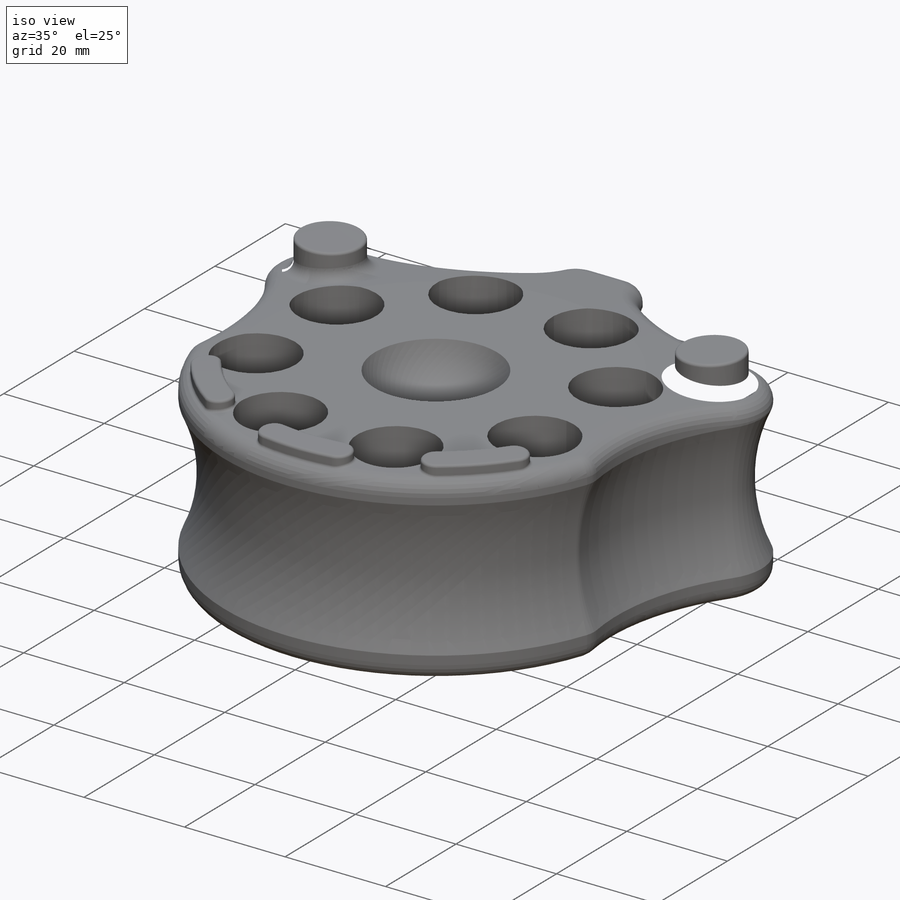
[diagram: iso view]
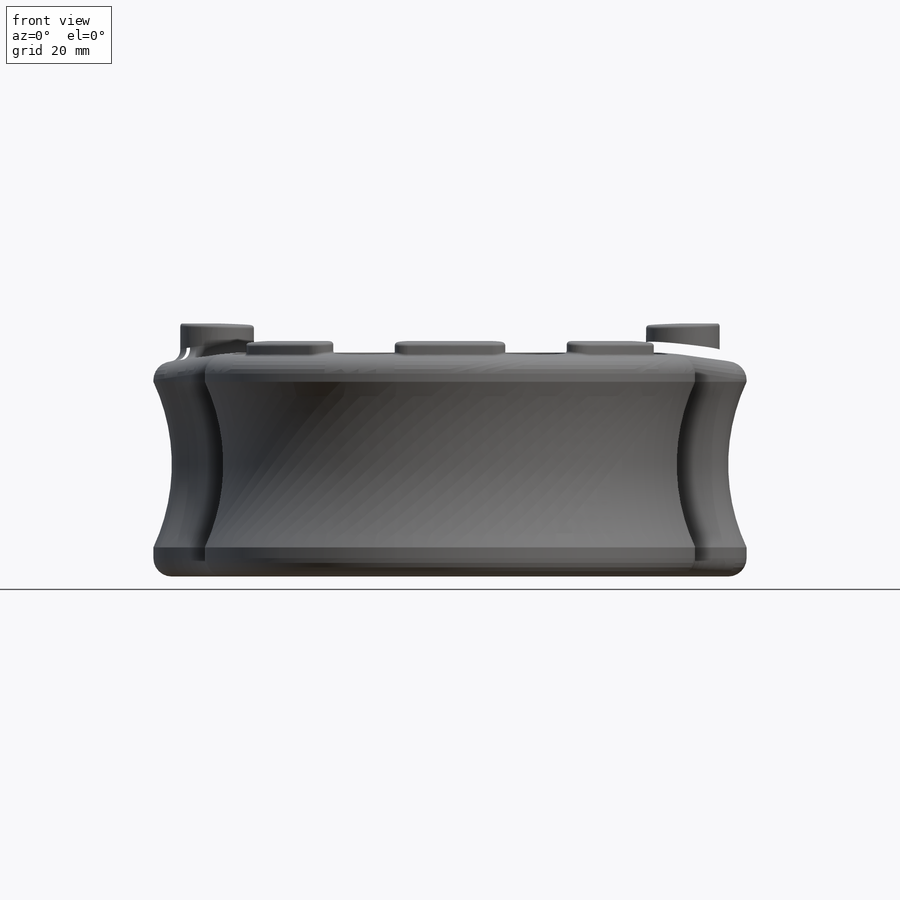
[diagram: front view]
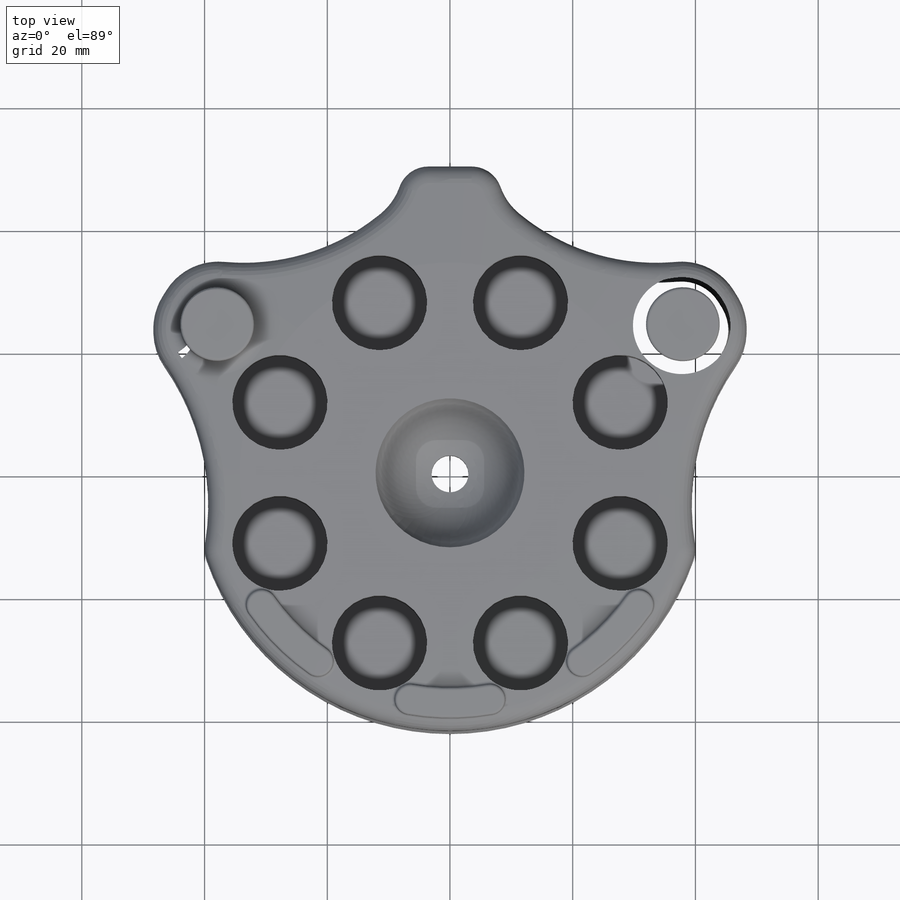
[diagram: top view]
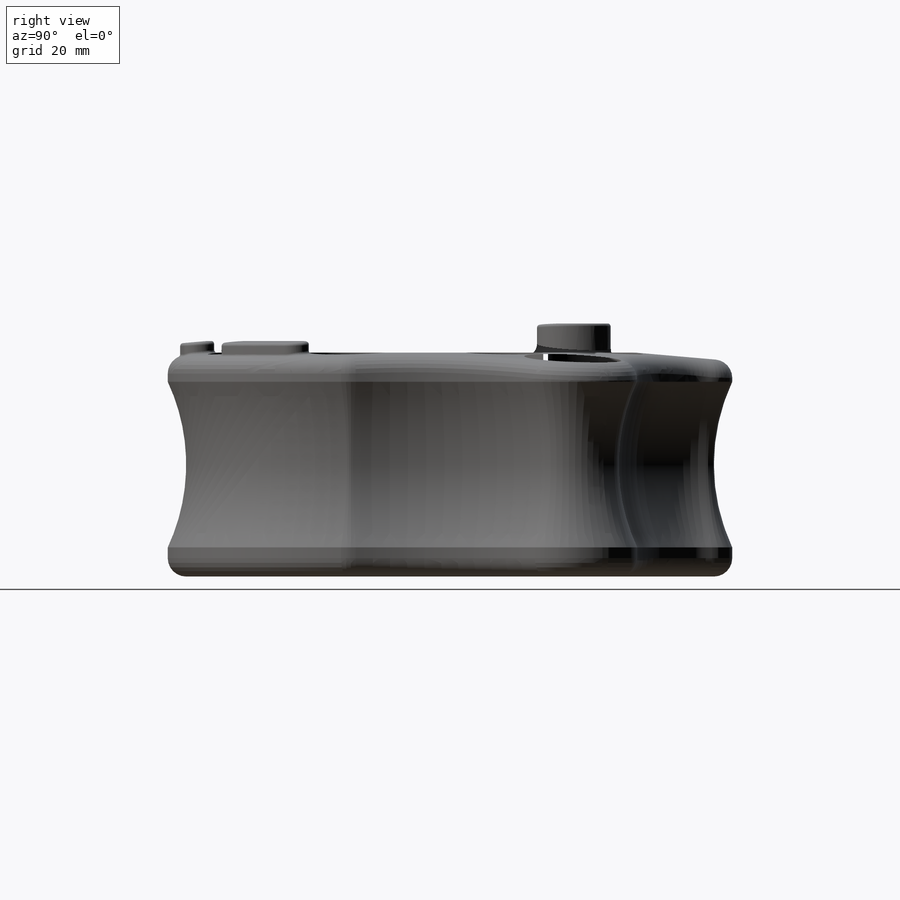
[diagram: right view]
SOLIDWORKS PART (.sldprt)
format: sldprt  version: not decoded by parser v0  size: 1,391,104 bytes
history: native  units: mm
features: sketch x16, extrude x6, plane x5, cut_extrude x5, fillet x5, cut_revolve x3, mirror x2, delete_body x2, material x1, pattern_circular x1 (+9 scaffold rows collapsed)
feature tree (55):
  scaffold x9  (default folders/planes/origin — collapsed)
  material  "Material <nicht festgelegt>"
  plane  "Vorne"
  plane  "Oben"
  plane  "Rechts"
  sketch  "Skizze1"  dims[D1=40.0mm D2=50.0mm]
  extrude  "Aufsatz-Linear austragen1"  Depth=36.5mm
  plane  "Ebene1"  Offset=3mm
  plane  "Ebene2"  Offset=3mm
  sketch  "Skizze2"  dims[D1=25.0mm D2=3.0mm]
  cut_revolve  "Schnitt-Rotation1"  Angle=360deg
  sketch  "Skizze5"  dims[c1.D1=22.0mm c1.D2=30.0mm c2.D2=22.5deg]
  extrude  "Aufsatz-Linear austragen2"  [1 undecoded]
  sketch  "Skizze7"  dims[D1=15.5mm]
  cut_extrude  "Schnitt-Linear austragen1"  Depth=11.5mm
  pattern_circular  "Kreismuster4"  Count=8 Angle=360deg
  sketch  "Skizze8"  dims[D1=6.0mm]
  cut_extrude  "Schnitt-Linear austragen2"  [1 undecoded]
  sketch  "Skizze12"  dims[c1.D1=55.0mm c2.D1=~0.147782mm]
  cut_extrude  "Schnitt-Linear austragen5"  Depth=12.5mm
  sketch  "Skizze13"  dims[D1=15.0mm]
  cut_extrude  "Schnitt-Linear austragen6"  Depth=10mm
  sketch  "Skizze16"  dims[c1.D1=~25.252691mm c1.D3=13.0mm c1.D4=~7.679008mm c2.D1=60.0mm c2.D5=40.0mm c2.D9=35.0mm c2.D4=40.0mm c2.D7=35.0mm c2.D11=30.0mm c3.D1=~38.386654mm c4.D1=67.0deg c4.D2=55.0mm c4.D4=55.0mm c5.D1=~165.136938mm c5.D4=60.0mm c6.D1=~49.156823mm c6.D2=~32.099018mm c7.D1=~30.489363mm c7.D2=~327.275441mm c8.D1=45.0mm c8.D2=32.0mm c8.D3=15.0mm c8.D4=25.0mm c8.D5=~43.206556mm c9.D2=30.0mm c9.D3=15.0mm c9.D6=17.0mm c9.D7=15.0mm c9.D1=55.0mm c10.D2=42.0mm c10.D3=5.0mm c10.D4=33.0mm c11.D4=120.0deg c11.D6=~5.060359mm c12.D6=100.0deg c12.D7=15.0mm c12.D8=5.0mm c12.D10=15.0mm c12.D11=50.0mm c12.D1=55.0mm c12.D2=42.0mm c12.D3=5.0mm c12.D5=100.0deg c13.D6=5.0mm c13.D8=15.0mm c13.D9=50.0mm c13.D10=42.0mm c14.D10=122.0deg c14.D11=~1.920935mm c14.D1=0.0mm c14.D5=0.0mm c14.D12=0.0mm]
  extrude  "Aufsatz-Linear austragen4"  [1 undecoded]
  mirror  "Spiegeln2"
  sketch  "Skizze9"  dims[c1.D1=~50.196923mm c2.D1=10.0deg c3.D1=50.0mm c3.D2=~20.493034mm c4.D2=5.0deg c4.D3=~0.060117mm c4.D1=10.0mm]
  cut_revolve  "Schnitt-Rotation7"  Angle=360deg
  fillet  "Verrundung1"  Radius=10mm
  fillet  "Verrundung2"  Radius=5mm
  sketch  "Skizze17"  dims[D1=3.0mm]
  sketch  "Skizze18"  dims[D1=27.0mm]
  delete_body  "Körper-Löschen1"
  fillet  "Verrundung3"  Radius=3mm
  sketch  "Skizze19"  dims[c1.D2=2.5mm c1.D3=37.5mm c1.D1=13.0mm c1.D4=37.5mm c2.D4=45.0deg]
  extrude  "Aufsatz-Linear austragen5"  Depth=2mm
  sketch  "Skizze20"  dims[c1.D1=12.0mm c1.D2=45.0mm c1.D3=~23.701298mm c2.D3=115.0deg]
  extrude  "Aufsatz-Linear austragen6"  Depth=23mm
  sketch  "Skizze21"  dims[c1.D1=~50.288596mm c2.D1=2.0deg c2.D2=3.0mm c3.D1=5.0mm]
  cut_revolve  "Schnitt-Rotation11"  Angle=180deg
  fillet  "Verrundung4"  Radius=0.5mm
  fillet  "Verrundung5"  Radius=2mm
  sketch  "Skizze23"  dims[c1.D3=33.0mm c1.D1=~30.748588mm c2.D1=6.8mm c2.D2=33.0mm c2.D3=~51.042252mm c2.D4=6.0mm c3.D4=50.0deg c4.D4=6.0mm c5.D4=55.0deg c5.D3=65.0mm]
  cut_extrude  "Schnitt-Linear austragen7"  Depth=3mm
  sketch  "Skizze25"  dims[D2=5.0mm D1=0.0mm]
  extrude  "Aufsatz-Linear austragen8"  Depth=5.5mm
  mirror  "Spiegeln3"
  delete_body  "Fläche verschieben2"
decode coverage: 33 of 40 modeling features carry decoded parameters
note: ~ marks probable driven/reference dimensions
note: 3 parameter values undecoded
summary: no parameter record found for 3 features
note: suppression state not decoded; provenance and decode notes live in map.json
